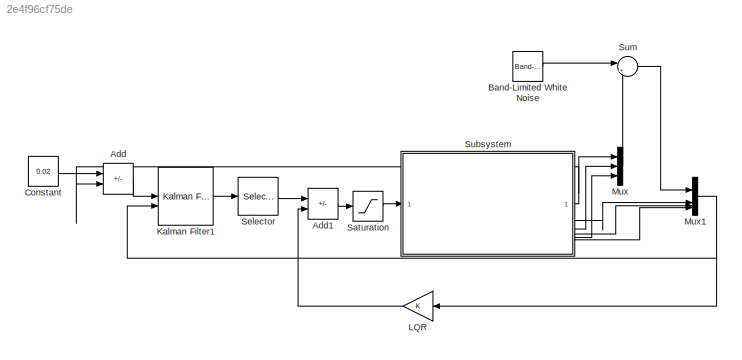
MODEL slx_2e4f96cf75de
KIND model
CONFIG AbsTol = auto
CONFIG EnableMultiTasking = off
CONFIG FixedStep = auto
CONFIG MaxStep = auto
CONFIG MinStep = auto
CONFIG RelTol = 1e-3
CONFIG SampleTimeConstraint = Unconstrained
CONFIG SolverName = VariableStepAuto
CONFIG StartTime = 0.0
CONFIG StopTime = 10.0
BLOCK [Sum] Add
  IconShape = rectangular
  Inputs = +-
BLOCK [Sum] Add1
  IconShape = rectangular
  Inputs = +-
BLOCK [Reference] Band-Limited White Noise  REF=simulink/Sources/Band-Limited
White Noise
  SourceBlock = simulink/Sources/Band-Limited\nWhite Noise
  SourceType = Band-Limited White Noise.
BLOCK [Constant] Constant
  Value = 0.02
BLOCK [Reference] Kalman Filter1  REF=ctrlSharedLib/Kalman Filter
  LibrarySourceBlock = slident/Estimators/Kalman Filter
  SourceBlock = ctrlSharedLib/Kalman Filter
  SourceType = ctrlKalmanFilter
BLOCK [Gain] LQR
  Gain = K
  Multiplication = Matrix(K*u)
  NameLocation = top
BLOCK [Mux] Mux
  DisplayOption = bar
  Inputs = 3
BLOCK [Mux] Mux1
  DisplayOption = bar
BLOCK [Saturate] Saturation
BLOCK [Selector] Selector
  IndexOptions = Index vector (dialog)
  Indices = [1 3]
  InputPortWidth = 3
  OutputSizes = 1
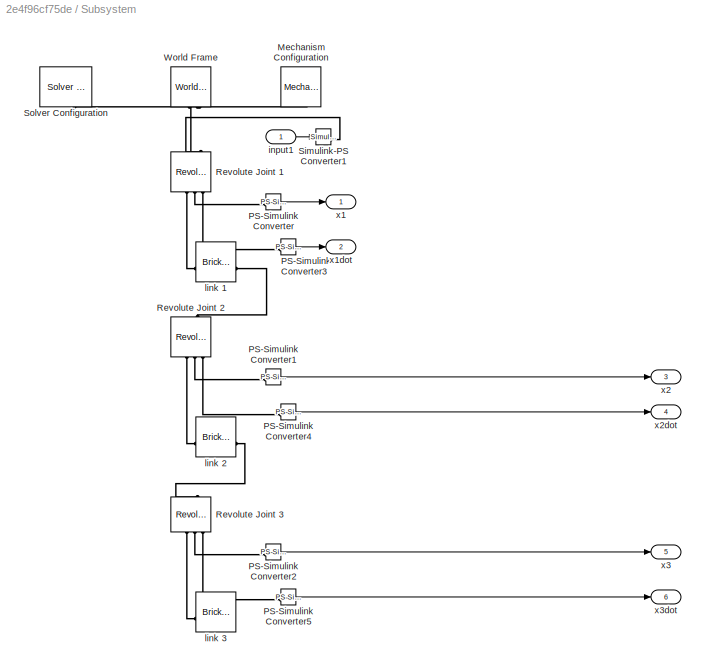
BLOCK [SubSystem] Subsystem
BLOCK [Reference] Subsystem/Mechanism Configuration  REF=sm_lib/Utilities/Mechanism
Configuration
  NameLocation = right
  SourceBlock = sm_lib/Utilities/Mechanism\nConfiguration
  SourceType = Mechanism\nConfiguration
BLOCK [Reference] Subsystem/PS-Simulink Converter  REF=nesl_utility/PS-Simulink
Converter
  SourceBlock = nesl_utility/PS-Simulink\nConverter
  SourceType = PS-Simulink\nConverter
BLOCK [Reference] Subsystem/PS-Simulink Converter1  REF=nesl_utility/PS-Simulink
Converter
  SourceBlock = nesl_utility/PS-Simulink\nConverter
  SourceType = PS-Simulink\nConverter
BLOCK [Reference] Subsystem/PS-Simulink Converter2  REF=nesl_utility/PS-Simulink
Converter
  SourceBlock = nesl_utility/PS-Simulink\nConverter
  SourceType = PS-Simulink\nConverter
BLOCK [Reference] Subsystem/PS-Simulink Converter3  REF=nesl_utility/PS-Simulink
Converter
  SourceBlock = nesl_utility/PS-Simulink\nConverter
  SourceType = PS-Simulink\nConverter
BLOCK [Reference] Subsystem/PS-Simulink Converter4  REF=nesl_utility/PS-Simulink
Converter
  SourceBlock = nesl_utility/PS-Simulink\nConverter
  SourceType = PS-Simulink\nConverter
BLOCK [Reference] Subsystem/PS-Simulink Converter5  REF=nesl_utility/PS-Simulink
Converter
  SourceBlock = nesl_utility/PS-Simulink\nConverter
  SourceType = PS-Simulink\nConverter
BLOCK [Reference] Subsystem/Revolute Joint 1  REF=sm_lib/Joints/Revolute Joint
  NameLocation = right
  SourceBlock = sm_lib/Joints/Revolute Joint
  SourceType = Revolute Joint
BLOCK [Reference] Subsystem/Revolute Joint 2  REF=sm_lib/Joints/Revolute Joint
  NameLocation = right
  SourceBlock = sm_lib/Joints/Revolute Joint
  SourceType = Revolute Joint
BLOCK [Reference] Subsystem/Revolute Joint 3  REF=sm_lib/Joints/Revolute Joint
  NameLocation = right
  SourceBlock = sm_lib/Joints/Revolute Joint
  SourceType = Revolute Joint
BLOCK [Reference] Subsystem/Simulink-PS Converter1  REF=nesl_utility/Simulink-PS
Converter
  SourceBlock = nesl_utility/Simulink-PS\nConverter
  SourceType = Simulink-PS\nConverter
BLOCK [Reference] Subsystem/Solver Configuration  REF=nesl_utility/Solver
Configuration
  NameLocation = right
  SourceBlock = nesl_utility/Solver\nConfiguration
  SourceType = Solver\nConfiguration
BLOCK [Reference] Subsystem/World Frame  REF=sm_lib/Frames and
Transforms/World Frame
  NameLocation = right
  SourceBlock = sm_lib/Frames and\nTransforms/World Frame
  SourceType = World Frame
BLOCK [Inport] Subsystem/input1
BLOCK [Reference] Subsystem/link 1  REF=sm_lib/Body Elements/Brick Solid
  NameLocation = top
  SourceBlock = sm_lib/Body Elements/Brick Solid
  SourceType = Brick Solid
BLOCK [Reference] Subsystem/link 2  REF=sm_lib/Body Elements/Brick Solid
  NameLocation = top
  SourceBlock = sm_lib/Body Elements/Brick Solid
  SourceType = Brick Solid
BLOCK [Reference] Subsystem/link 3  REF=sm_lib/Body Elements/Brick Solid
  NameLocation = top
  SourceBlock = sm_lib/Body Elements/Brick Solid
  SourceType = Brick Solid
BLOCK [Outport] Subsystem/x1
BLOCK [Outport] Subsystem/x1dot
  Port = 2
BLOCK [Outport] Subsystem/x2
  Port = 3
BLOCK [Outport] Subsystem/x2dot
  Port = 4
BLOCK [Outport] Subsystem/x3
  Port = 5
BLOCK [Outport] Subsystem/x3dot
  Port = 6
BLOCK [Sum] Sum
  Inputs = |++
LINE Add1:1 -> Saturation:1
LINE Add:1 -> Kalman Filter1:1
LINE Band-Limited White Noise:1 -> Sum:1
LINE Constant:1 -> Add:1
LINE Kalman Filter1:1 -> Selector:1
LINE LQR:1 -> Add1:2
NET Mux1:1 -> Kalman Filter1:2, LQR:1
LINE Mux:1 -> Sum:2
LINE Saturation:1 -> Subsystem:1
LINE Selector:1 -> Add1:1
LINE Subsystem/PS-Simulink Converter1:1 -> Subsystem/x2:1
LINE Subsystem/PS-Simulink Converter2:1 -> Subsystem/x3:1
LINE Subsystem/PS-Simulink Converter3:1 -> Subsystem/x1dot:1
LINE Subsystem/PS-Simulink Converter4:1 -> Subsystem/x2dot:1
LINE Subsystem/PS-Simulink Converter5:1 -> Subsystem/x3dot:1
LINE Subsystem/PS-Simulink Converter:1 -> Subsystem/x1:1
LINE Subsystem/input1:1 -> Subsystem/Simulink-PS Converter1:1
NET Subsystem:1 -> Add:2, Mux:1
LINE Subsystem:2 -> Mux1:2
LINE Subsystem:3 -> Mux:2
LINE Subsystem:4 -> Mux1:3
LINE Subsystem:5 -> Mux:3
LINE Subsystem:6 -> Mux1:4
LINE Sum:1 -> Mux1:1
PNET net1: Subsystem/Mechanism Configuration:RConn1 -- Subsystem/Revolute Joint 1:LConn1 -- Subsystem/Solver Configuration:RConn1 -- Subsystem/World Frame:RConn1
PLINE Subsystem/PS-Simulink Converter1:LConn1 -- Subsystem/Revolute Joint 2:RConn2
PLINE Subsystem/PS-Simulink Converter2:LConn1 -- Subsystem/Revolute Joint 3:RConn2
PLINE Subsystem/PS-Simulink Converter3:LConn1 -- Subsystem/Revolute Joint 1:RConn3
PLINE Subsystem/PS-Simulink Converter4:LConn1 -- Subsystem/Revolute Joint 2:RConn3
PLINE Subsystem/PS-Simulink Converter5:LConn1 -- Subsystem/Revolute Joint 3:RConn3
PLINE Subsystem/PS-Simulink Converter:LConn1 -- Subsystem/Revolute Joint 1:RConn2
PLINE Subsystem/Revolute Joint 1:LConn2 -- Subsystem/Simulink-PS Converter1:RConn1
PLINE Subsystem/Revolute Joint 1:RConn1 -- Subsystem/link 1:LConn1
PLINE Subsystem/Revolute Joint 2:LConn1 -- Subsystem/link 1:RConn1
PLINE Subsystem/Revolute Joint 2:RConn1 -- Subsystem/link 2:LConn1
PLINE Subsystem/Revolute Joint 3:LConn1 -- Subsystem/link 2:RConn1
PLINE Subsystem/Revolute Joint 3:RConn1 -- Subsystem/link 3:LConn1
note: NET lines group one-source signal fan-out (src -> all destinations, sorted); 1:1 wires keep LINE; PNET lines group multi-terminal physical nets as a canonical sorted terminal list (undirected conserving connections); 2-terminal nets keep the pairwise PLINE form
